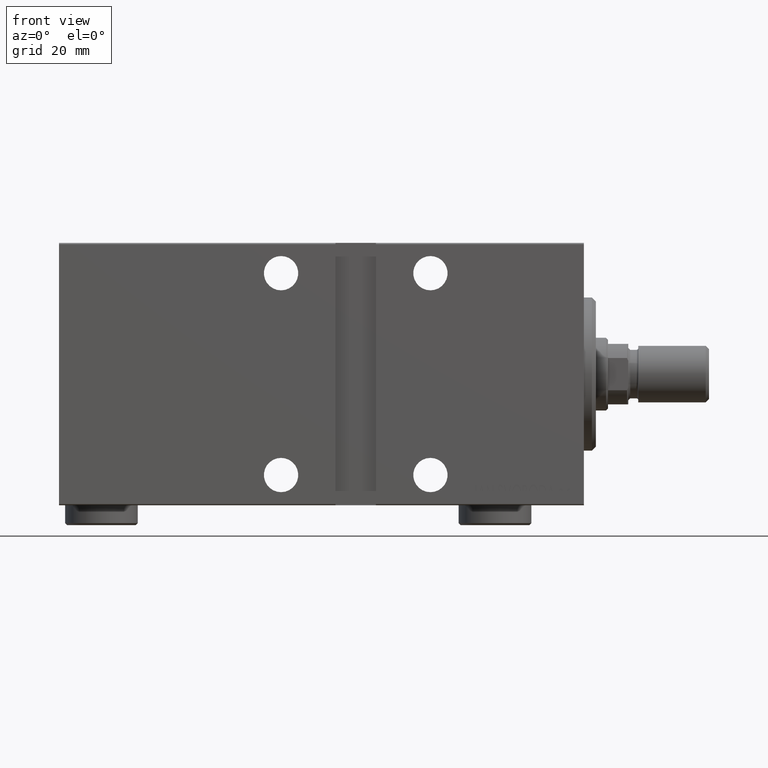
[diagram: clean part render]
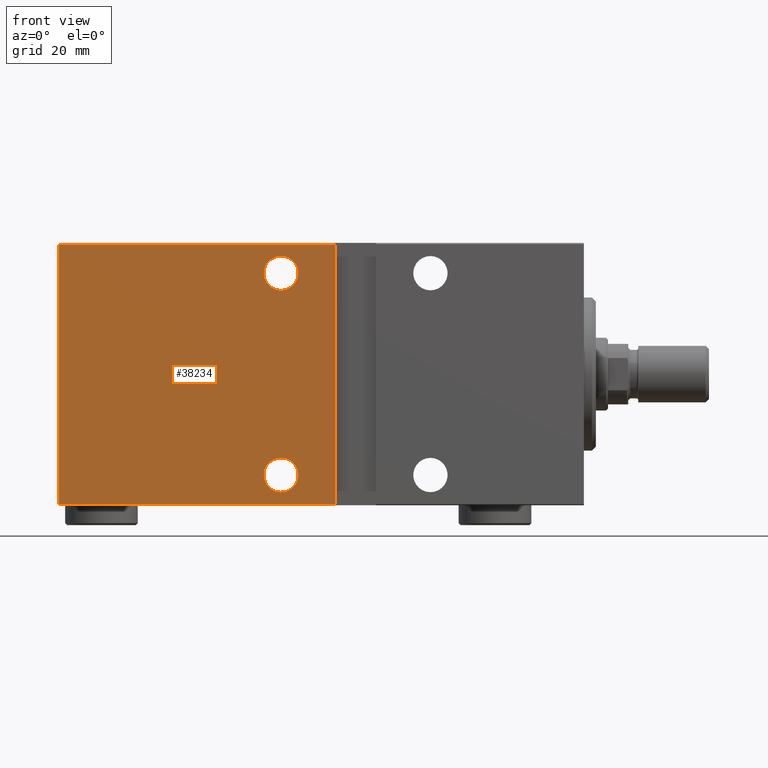
[diagram: same view with one face highlighted and labeled with its STEP entity id]
A machine part, front view. The second image highlights one B-rep face of the part: STEP entity #38234.
In plain terms, the highlighted planar face has unit normal (-0, 1, -0).
Its self-contained STEP definition (entity closure, byte-faithful):
#341 = CIRCLE ( 'NONE', #38341, 4.250000000000003553 ) ;
#1350 = VECTOR ( 'NONE', #31299, 1000.000000000000000 ) ;
#1751 = CARTESIAN_POINT ( 'NONE',  ( 61.50000000000000711, 22.50000000000000000, 32.20000000000003126 ) ) ;
#2524 = ORIENTED_EDGE ( 'NONE', *, *, #17253, .F. ) ;
#3009 = DIRECTION ( 'NONE',  ( 0.000000000000000000, 0.000000000000000000, 1.000000000000000000 ) ) ;
#3636 = ORIENTED_EDGE ( 'NONE', *, *, #13049, .T. ) ;
#3773 = DIRECTION ( 'NONE',  ( -2.135044278125300850E-16, 0.000000000000000000, -1.000000000000000000 ) ) ;
#4703 = CIRCLE ( 'NONE', #31954, 4.250000000000003553 ) ;
#5146 = DIRECTION ( 'NONE',  ( 0.000000000000000000, 1.000000000000000000, 0.000000000000000000 ) ) ;
#6058 = CARTESIAN_POINT ( 'NONE',  ( 130.0000000000000000, 22.50000000000000355, -32.50000000000000000 ) ) ;
#6106 = CARTESIAN_POINT ( 'NONE',  ( 130.0000000000000000, 22.49999999999999645, 32.20000000000003126 ) ) ;
#6503 = ORIENTED_EDGE ( 'NONE', *, *, #41384, .F. ) ;
#6737 = EDGE_CURVE ( 'NONE', #24883, #34307, #36350, .T. ) ;
#7061 = AXIS2_PLACEMENT_3D ( 'NONE', #15331, #38905, #11974 ) ;
#8062 = CARTESIAN_POINT ( 'NONE',  ( 75.00000000000001421, 22.50000000000001776, -25.00000000000000000 ) ) ;
#8964 = CARTESIAN_POINT ( 'NONE',  ( 130.0000000000000000, 22.50000000000000355, -32.50000000000000000 ) ) ;
#9063 = DIRECTION ( 'NONE',  ( 1.000000000000000000, 0.000000000000000000, 0.000000000000000000 ) ) ;
#9778 = CARTESIAN_POINT ( 'NONE',  ( 130.0000000000000000, 22.49999999999999645, 32.20000000000003126 ) ) ;
#10074 = DIRECTION ( 'NONE',  ( 0.000000000000000000, 0.000000000000000000, 1.000000000000000000 ) ) ;
#10590 = CARTESIAN_POINT ( 'NONE',  ( 130.0000000000000000, 22.50000000000000355, -32.20000000000001705 ) ) ;
#11198 = CARTESIAN_POINT ( 'NONE',  ( 61.50000000000000711, 22.50000000000000000, 32.50000000000000000 ) ) ;
#11737 = ORIENTED_EDGE ( 'NONE', *, *, #21268, .F. ) ;
#11974 = DIRECTION ( 'NONE',  ( 0.000000000000000000, 0.000000000000000000, 1.000000000000000000 ) ) ;
#12385 = FACE_OUTER_BOUND ( 'NONE', #32601, .T. ) ;
#13049 = EDGE_CURVE ( 'NONE', #24883, #36965, #14229, .T. ) ;
#13359 = CARTESIAN_POINT ( 'NONE',  ( 75.00000000000001421, 22.50000000000001776, -29.25000000000000355 ) ) ;
#13863 = DIRECTION ( 'NONE',  ( 0.000000000000000000, 1.000000000000000000, 0.000000000000000000 ) ) ;
#14229 = LINE ( 'NONE', #31076, #1350 ) ;
#14335 = LINE ( 'NONE', #11198, #39445 ) ;
#14970 = VERTEX_POINT ( 'NONE', #20963 ) ;
#15331 = CARTESIAN_POINT ( 'NONE',  ( 75.00000000000001421, 22.50000000000001776, -25.00000000000000000 ) ) ;
#16175 = FACE_BOUND ( 'NONE', #39629, .T. ) ;
#17253 = EDGE_CURVE ( 'NONE', #41066, #36965, #14335, .T. ) ;
#17805 = CARTESIAN_POINT ( 'NONE',  ( 61.49999999999999289, 22.50000000000000000, -32.20000000000001705 ) ) ;
#20363 = CARTESIAN_POINT ( 'NONE',  ( 75.00000000000001421, 22.50000000000001776, 25.00000000000000000 ) ) ;
#20963 = CARTESIAN_POINT ( 'NONE',  ( 75.00000000000001421, 22.50000000000001776, 29.25000000000000355 ) ) ;
#21268 = EDGE_CURVE ( 'NONE', #14970, #39881, #341, .T. ) ;
#21300 = CARTESIAN_POINT ( 'NONE',  ( 75.00000000000001421, 22.50000000000001776, -20.74999999999999645 ) ) ;
#23216 = DIRECTION ( 'NONE',  ( 0.000000000000000000, 1.000000000000000000, 0.000000000000000000 ) ) ;
#23533 = EDGE_CURVE ( 'NONE', #39881, #14970, #4703, .T. ) ;
#24664 = ORIENTED_EDGE ( 'NONE', *, *, #6737, .F. ) ;
#24883 = VERTEX_POINT ( 'NONE', #10590 ) ;
#25702 = CIRCLE ( 'NONE', #7061, 4.250000000000003553 ) ;
#26071 = PLANE ( 'NONE',  #40124 ) ;
#26596 = CARTESIAN_POINT ( 'NONE',  ( 75.00000000000001421, 22.50000000000001776, 25.00000000000000000 ) ) ;
#26969 = VECTOR ( 'NONE', #36571, 1000.000000000000000 ) ;
#27261 = CIRCLE ( 'NONE', #30859, 4.250000000000003553 ) ;
#30859 = AXIS2_PLACEMENT_3D ( 'NONE', #8062, #5146, #32093 ) ;
#31076 = CARTESIAN_POINT ( 'NONE',  ( 130.0000000000000000, 22.50000000000000355, -32.20000000000001705 ) ) ;
#31169 = ORIENTED_EDGE ( 'NONE', *, *, #37087, .T. ) ;
#31299 = DIRECTION ( 'NONE',  ( -1.000000000000000000, 0.000000000000000000, 0.000000000000000000 ) ) ;
#31954 = AXIS2_PLACEMENT_3D ( 'NONE', #26596, #23216, #3009 ) ;
#32093 = DIRECTION ( 'NONE',  ( 0.000000000000000000, 0.000000000000000000, 1.000000000000000000 ) ) ;
#32601 = EDGE_LOOP ( 'NONE', ( #24664, #3636, #2524, #31169 ) ) ;
#32824 = DIRECTION ( 'NONE',  ( 0.000000000000000000, 1.067522139062650425E-16, -1.000000000000000000 ) ) ;
#33336 = ORIENTED_EDGE ( 'NONE', *, *, #23533, .F. ) ;
#34307 = VERTEX_POINT ( 'NONE', #9778 ) ;
#34313 = VERTEX_POINT ( 'NONE', #13359 ) ;
#36020 = EDGE_LOOP ( 'NONE', ( #11737, #33336 ) ) ;
#36187 = EDGE_CURVE ( 'NONE', #38494, #34313, #25702, .T. ) ;
#36350 = LINE ( 'NONE', #8964, #26969 ) ;
#36504 = VECTOR ( 'NONE', #9063, 1000.000000000000000 ) ;
#36571 = DIRECTION ( 'NONE',  ( 0.000000000000000000, -1.067522139062650425E-16, 1.000000000000000000 ) ) ;
#36793 = ORIENTED_EDGE ( 'NONE', *, *, #36187, .F. ) ;
#36965 = VERTEX_POINT ( 'NONE', #17805 ) ;
#37087 = EDGE_CURVE ( 'NONE', #41066, #34307, #40033, .T. ) ;
#38234 = ADVANCED_FACE ( 'NONE', ( #16175, #40405, #12385 ), #26071, .F. ) ;
#38341 = AXIS2_PLACEMENT_3D ( 'NONE', #20363, #13863, #10074 ) ;
#38494 = VERTEX_POINT ( 'NONE', #21300 ) ;
#38905 = DIRECTION ( 'NONE',  ( 0.000000000000000000, 1.000000000000000000, 0.000000000000000000 ) ) ;
#39051 = CARTESIAN_POINT ( 'NONE',  ( 75.00000000000001421, 22.50000000000001776, 20.74999999999999645 ) ) ;
#39445 = VECTOR ( 'NONE', #3773, 1000.000000000000000 ) ;
#39629 = EDGE_LOOP ( 'NONE', ( #36793, #6503 ) ) ;
#39881 = VERTEX_POINT ( 'NONE', #39051 ) ;
#39989 = DIRECTION ( 'NONE',  ( 0.000000000000000000, -1.000000000000000000, -1.067522139062650425E-16 ) ) ;
#40033 = LINE ( 'NONE', #6106, #36504 ) ;
#40124 = AXIS2_PLACEMENT_3D ( 'NONE', #6058, #39989, #32824 ) ;
#40405 = FACE_BOUND ( 'NONE', #36020, .T. ) ;
#41066 = VERTEX_POINT ( 'NONE', #1751 ) ;
#41384 = EDGE_CURVE ( 'NONE', #34313, #38494, #27261, .T. ) ;